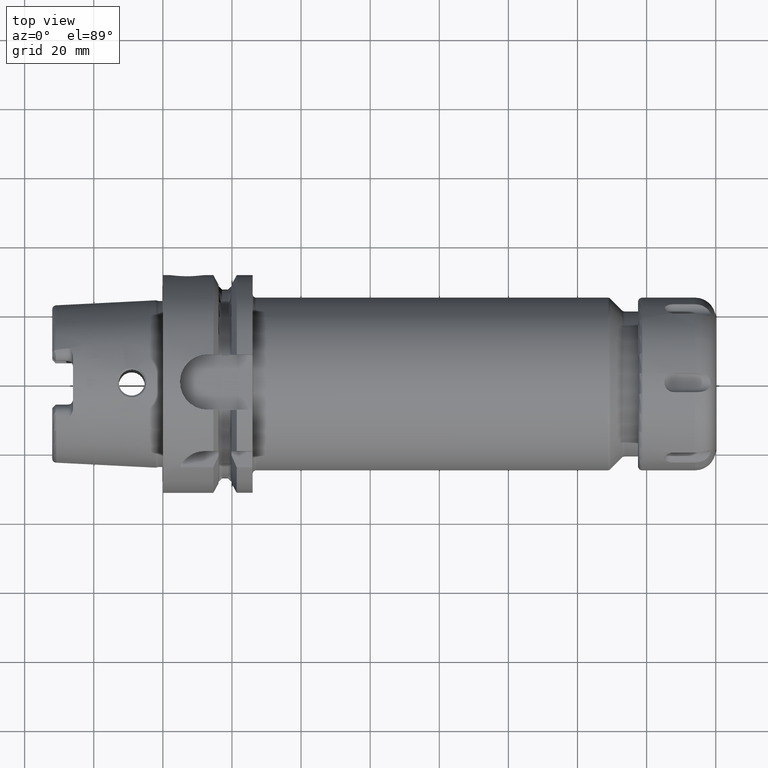
[diagram: clean part render]
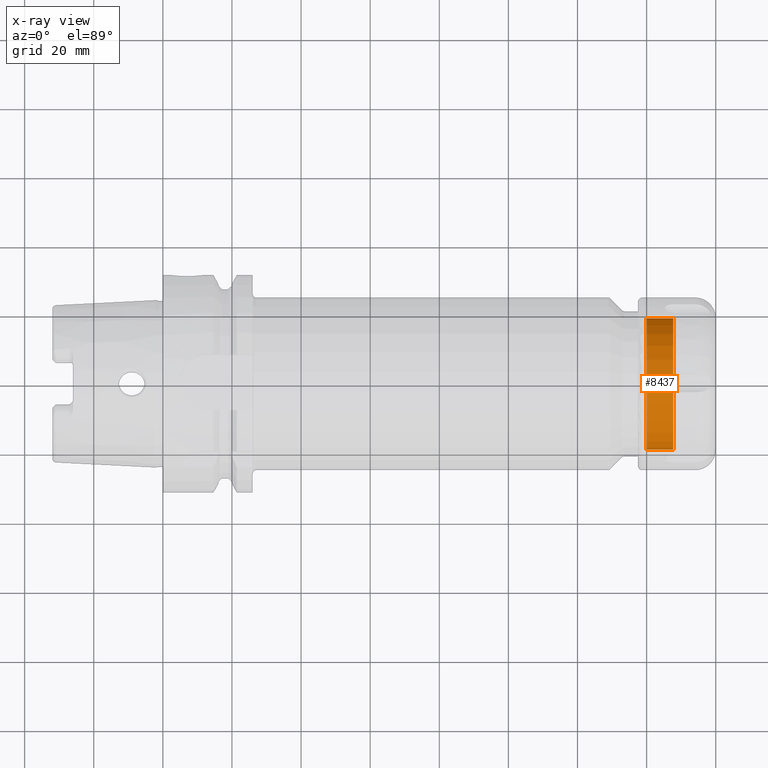
[diagram: x-ray — body ghosted, one internal face saturated and labeled with its STEP entity id]
A machine part, top view, then the same camera in x-ray: the body is ghosted and one INTERNAL B-rep face — a face not visible from any outside direction — is saturated and labeled: STEP entity #8437.
In plain terms, the highlighted cylindrical surface (partial cylindrical patch) has radius 19 mm, axis along (1, 0, 0).
Its self-contained STEP definition (entity closure, byte-faithful):
#7254=CARTESIAN_POINT('',(1.02E1,0.E0,0.E0));
#7255=DIRECTION('',(1.E0,0.E0,0.E0));
#7256=DIRECTION('',(0.E0,1.E0,0.E0));
#7257=AXIS2_PLACEMENT_3D('',#7254,#7255,#7256);
#7264=CARTESIAN_POINT('',(2.5E0,0.E0,0.E0));
#7265=DIRECTION('',(1.E0,0.E0,0.E0));
#7266=DIRECTION('',(0.E0,1.E0,0.E0));
#7267=AXIS2_PLACEMENT_3D('',#7264,#7265,#7266);
#7269=DIRECTION('',(1.E0,0.E0,0.E0));
#7270=VECTOR('',#7269,7.7E0);
#7271=CARTESIAN_POINT('',(2.5E0,1.9E1,0.E0));
#7272=LINE('',#7271,#7270);
#7286=DIRECTION('',(1.E0,0.E0,0.E0));
#7287=VECTOR('',#7286,7.7E0);
#7288=CARTESIAN_POINT('',(2.5E0,-1.9E1,0.E0));
#7289=LINE('',#7288,#7287);
#7557=CARTESIAN_POINT('',(1.02E1,1.9E1,0.E0));
#7558=CARTESIAN_POINT('',(1.02E1,-1.9E1,0.E0));
#7559=VERTEX_POINT('',#7557);
#7560=VERTEX_POINT('',#7558);
#7623=CARTESIAN_POINT('',(2.5E0,1.9E1,0.E0));
#7624=CARTESIAN_POINT('',(2.5E0,-1.9E1,0.E0));
#7625=VERTEX_POINT('',#7623);
#7626=VERTEX_POINT('',#7624);
#8423=CARTESIAN_POINT('',(0.E0,0.E0,0.E0));
#8424=DIRECTION('',(1.E0,0.E0,0.E0));
#8425=DIRECTION('',(0.E0,1.E0,0.E0));
#8426=AXIS2_PLACEMENT_3D('',#8423,#8424,#8425);
#8427=CYLINDRICAL_SURFACE('',#8426,1.9E1);
#8429=ORIENTED_EDGE('',*,*,#8428,.T.);
#8431=ORIENTED_EDGE('',*,*,#8430,.T.);
#8432=ORIENTED_EDGE('',*,*,#8416,.F.);
#8434=ORIENTED_EDGE('',*,*,#8433,.F.);
#8435=EDGE_LOOP('',(#8429,#8431,#8432,#8434));
#8436=FACE_OUTER_BOUND('',#8435,.F.);
#8437=ADVANCED_FACE('',(#8436),#8427,.F.);
#7258=CIRCLE('',#7257,1.9E1);
#7268=CIRCLE('',#7267,1.9E1);
#8416=EDGE_CURVE('',#7559,#7560,#7258,.T.);
#8428=EDGE_CURVE('',#7625,#7626,#7268,.T.);
#8430=EDGE_CURVE('',#7626,#7560,#7289,.T.);
#8433=EDGE_CURVE('',#7625,#7559,#7272,.T.);